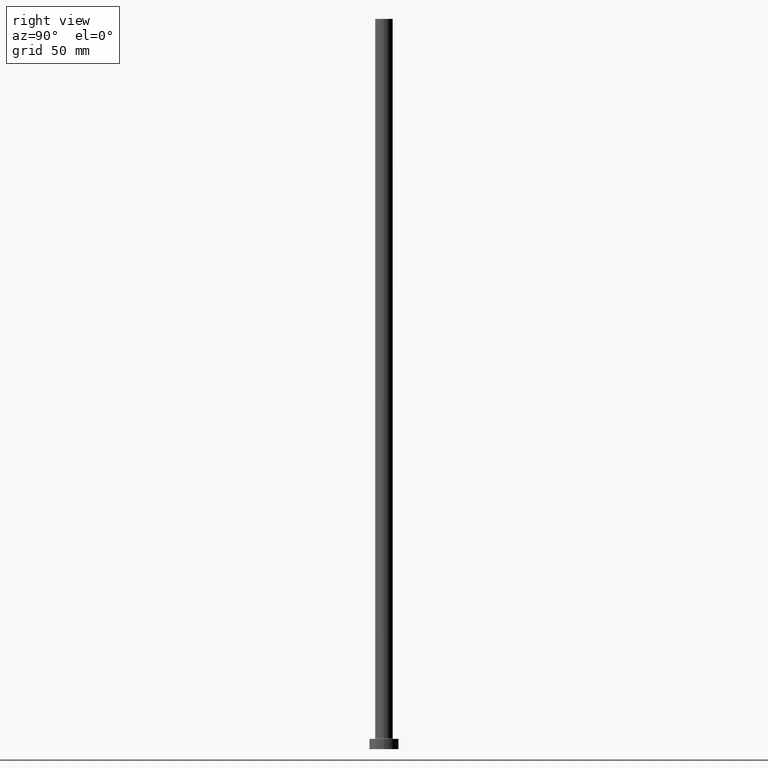
[diagram: clean part render]
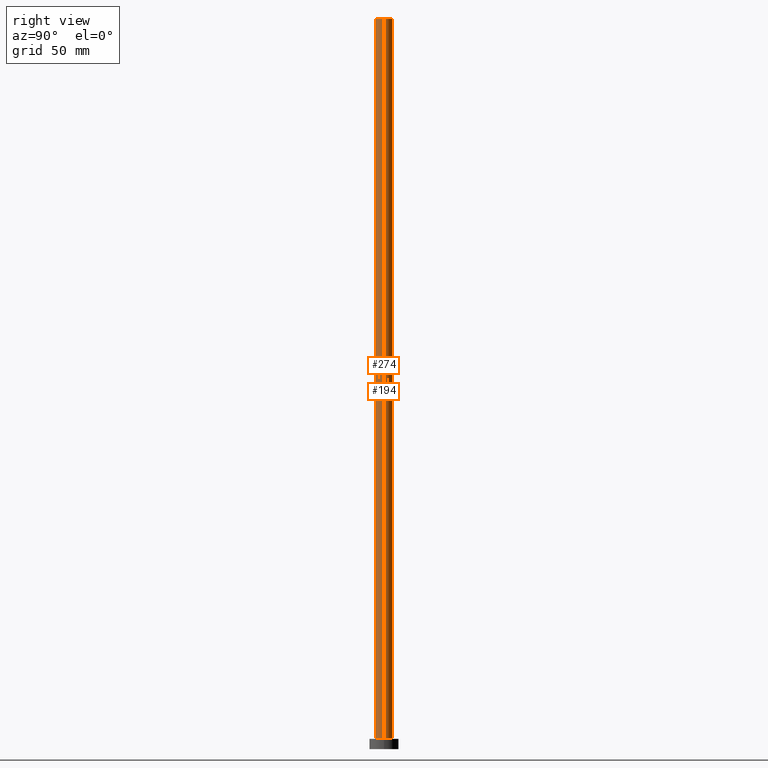
[diagram: same view with one multi-face feature highlighted, each face labeled with its STEP entity id]
A machine part, right view. The highlighted faces form ONE feature: a constant-radius fillet chain: 2 tangent blend faces with common blend radius 6 mm. The faces share edges in the B-rep.
Their STEP definitions:
[1] entity #274 (Cylinder):
#8 = AXIS2_PLACEMENT_3D ( 'NONE', #171, #122, #150 ) ;
#13 = LINE ( 'NONE', #151, #384 ) ;
#22 = CYLINDRICAL_SURFACE ( 'NONE', #294, 6.000000000000000888 ) ;
#24 = DIRECTION ( 'NONE',  ( 1.000000000000000000, 0.000000000000000000, 0.000000000000000000 ) ) ;
#25 = CIRCLE ( 'NONE', #8, 6.000000000000000888 ) ;
#36 = ORIENTED_EDGE ( 'NONE', *, *, #75, .T. ) ;
#41 = ORIENTED_EDGE ( 'NONE', *, *, #259, .T. ) ;
#49 = DIRECTION ( 'NONE',  ( -1.000000000000000000, 0.000000000000000000, 0.000000000000000000 ) ) ;
#57 = CARTESIAN_POINT ( 'NONE',  ( 6.000000000000000888, 7.347880794884120722E-16, 500.0000000000000000 ) ) ;
#58 = LINE ( 'NONE', #196, #261 ) ;
#70 = AXIS2_PLACEMENT_3D ( 'NONE', #457, #197, #24 ) ;
#74 = VERTEX_POINT ( 'NONE', #57 ) ;
#75 = EDGE_CURVE ( 'NONE', #98, #391, #13, .T. ) ;
#90 = FACE_OUTER_BOUND ( 'NONE', #180, .T. ) ;
#98 = VERTEX_POINT ( 'NONE', #225 ) ;
#109 = ORIENTED_EDGE ( 'NONE', *, *, #231, .F. ) ;
#122 = DIRECTION ( 'NONE',  ( 0.000000000000000000, 0.000000000000000000, 1.000000000000000000 ) ) ;
#147 = CIRCLE ( 'NONE', #70, 6.000000000000000888 ) ;
#150 = DIRECTION ( 'NONE',  ( 1.000000000000000000, 0.000000000000000000, 0.000000000000000000 ) ) ;
#151 = CARTESIAN_POINT ( 'NONE',  ( -6.000000000000000888, 0.000000000000000000, 500.0000000000000000 ) ) ;
#171 = CARTESIAN_POINT ( 'NONE',  ( 0.000000000000000000, 0.000000000000000000, 7.500000000000007105 ) ) ;
#180 = EDGE_LOOP ( 'NONE', ( #250, #109, #36, #41 ) ) ;
#183 = DIRECTION ( 'NONE',  ( -0.000000000000000000, -0.000000000000000000, -1.000000000000000000 ) ) ;
#184 = CARTESIAN_POINT ( 'NONE',  ( 6.000000000000000888, 7.347880794884120722E-16, 7.500000000000007105 ) ) ;
#196 = CARTESIAN_POINT ( 'NONE',  ( 6.000000000000000888, 7.347880794884120722E-16, 500.0000000000000000 ) ) ;
#197 = DIRECTION ( 'NONE',  ( 0.000000000000000000, 0.000000000000000000, 1.000000000000000000 ) ) ;
#220 = DIRECTION ( 'NONE',  ( -0.000000000000000000, -0.000000000000000000, -1.000000000000000000 ) ) ;
#225 = CARTESIAN_POINT ( 'NONE',  ( -6.000000000000000888, 0.000000000000000000, 500.0000000000000000 ) ) ;
#231 = EDGE_CURVE ( 'NONE', #98, #74, #147, .T. ) ;
#250 = ORIENTED_EDGE ( 'NONE', *, *, #439, .F. ) ;
#259 = EDGE_CURVE ( 'NONE', #391, #350, #25, .T. ) ;
#261 = VECTOR ( 'NONE', #302, 1000.000000000000000 ) ;
#274 = ADVANCED_FACE ( 'NONE', ( #90 ), #22, .T. ) ;
#294 = AXIS2_PLACEMENT_3D ( 'NONE', #400, #220, #49 ) ;
#302 = DIRECTION ( 'NONE',  ( -0.000000000000000000, -0.000000000000000000, -1.000000000000000000 ) ) ;
#350 = VERTEX_POINT ( 'NONE', #184 ) ;
#369 = CARTESIAN_POINT ( 'NONE',  ( -6.000000000000000888, 0.000000000000000000, 7.500000000000007105 ) ) ;
#384 = VECTOR ( 'NONE', #183, 1000.000000000000000 ) ;
#391 = VERTEX_POINT ( 'NONE', #369 ) ;
#400 = CARTESIAN_POINT ( 'NONE',  ( 0.000000000000000000, 0.000000000000000000, 500.0000000000000000 ) ) ;
#439 = EDGE_CURVE ( 'NONE', #74, #350, #58, .T. ) ;
#457 = CARTESIAN_POINT ( 'NONE',  ( 0.000000000000000000, 0.000000000000000000, 500.0000000000000000 ) ) ;
[2] entity #194 (Cylinder):
#2 = ORIENTED_EDGE ( 'NONE', *, *, #124, .T. ) ;
#13 = LINE ( 'NONE', #151, #384 ) ;
#38 = ORIENTED_EDGE ( 'NONE', *, *, #279, .F. ) ;
#45 = CARTESIAN_POINT ( 'NONE',  ( 0.000000000000000000, 0.000000000000000000, 7.500000000000007105 ) ) ;
#57 = CARTESIAN_POINT ( 'NONE',  ( 6.000000000000000888, 7.347880794884120722E-16, 500.0000000000000000 ) ) ;
#58 = LINE ( 'NONE', #196, #261 ) ;
#74 = VERTEX_POINT ( 'NONE', #57 ) ;
#75 = EDGE_CURVE ( 'NONE', #98, #391, #13, .T. ) ;
#78 = EDGE_LOOP ( 'NONE', ( #38, #278, #2, #395 ) ) ;
#97 = CYLINDRICAL_SURFACE ( 'NONE', #287, 6.000000000000000888 ) ;
#98 = VERTEX_POINT ( 'NONE', #225 ) ;
#124 = EDGE_CURVE ( 'NONE', #350, #391, #293, .T. ) ;
#136 = DIRECTION ( 'NONE',  ( -1.000000000000000000, 0.000000000000000000, 0.000000000000000000 ) ) ;
#151 = CARTESIAN_POINT ( 'NONE',  ( -6.000000000000000888, 0.000000000000000000, 500.0000000000000000 ) ) ;
#166 = DIRECTION ( 'NONE',  ( -0.000000000000000000, -0.000000000000000000, -1.000000000000000000 ) ) ;
#168 = FACE_OUTER_BOUND ( 'NONE', #78, .T. ) ;
#183 = DIRECTION ( 'NONE',  ( -0.000000000000000000, -0.000000000000000000, -1.000000000000000000 ) ) ;
#184 = CARTESIAN_POINT ( 'NONE',  ( 6.000000000000000888, 7.347880794884120722E-16, 7.500000000000007105 ) ) ;
#194 = ADVANCED_FACE ( 'NONE', ( #168 ), #97, .T. ) ;
#196 = CARTESIAN_POINT ( 'NONE',  ( 6.000000000000000888, 7.347880794884120722E-16, 500.0000000000000000 ) ) ;
#223 = CARTESIAN_POINT ( 'NONE',  ( 0.000000000000000000, 0.000000000000000000, 500.0000000000000000 ) ) ;
#225 = CARTESIAN_POINT ( 'NONE',  ( -6.000000000000000888, 0.000000000000000000, 500.0000000000000000 ) ) ;
#258 = DIRECTION ( 'NONE',  ( 1.000000000000000000, 0.000000000000000000, 0.000000000000000000 ) ) ;
#261 = VECTOR ( 'NONE', #302, 1000.000000000000000 ) ;
#262 = DIRECTION ( 'NONE',  ( 0.000000000000000000, 0.000000000000000000, 1.000000000000000000 ) ) ;
#278 = ORIENTED_EDGE ( 'NONE', *, *, #439, .T. ) ;
#279 = EDGE_CURVE ( 'NONE', #74, #98, #440, .T. ) ;
#287 = AXIS2_PLACEMENT_3D ( 'NONE', #346, #166, #136 ) ;
#291 = DIRECTION ( 'NONE',  ( 1.000000000000000000, 0.000000000000000000, 0.000000000000000000 ) ) ;
#293 = CIRCLE ( 'NONE', #426, 6.000000000000000888 ) ;
#302 = DIRECTION ( 'NONE',  ( -0.000000000000000000, -0.000000000000000000, -1.000000000000000000 ) ) ;
#346 = CARTESIAN_POINT ( 'NONE',  ( 0.000000000000000000, 0.000000000000000000, 500.0000000000000000 ) ) ;
#350 = VERTEX_POINT ( 'NONE', #184 ) ;
#369 = CARTESIAN_POINT ( 'NONE',  ( -6.000000000000000888, 0.000000000000000000, 7.500000000000007105 ) ) ;
#384 = VECTOR ( 'NONE', #183, 1000.000000000000000 ) ;
#391 = VERTEX_POINT ( 'NONE', #369 ) ;
#395 = ORIENTED_EDGE ( 'NONE', *, *, #75, .F. ) ;
#404 = DIRECTION ( 'NONE',  ( 0.000000000000000000, 0.000000000000000000, 1.000000000000000000 ) ) ;
#411 = AXIS2_PLACEMENT_3D ( 'NONE', #223, #262, #258 ) ;
#426 = AXIS2_PLACEMENT_3D ( 'NONE', #45, #404, #291 ) ;
#439 = EDGE_CURVE ( 'NONE', #74, #350, #58, .T. ) ;
#440 = CIRCLE ( 'NONE', #411, 6.000000000000000888 ) ;